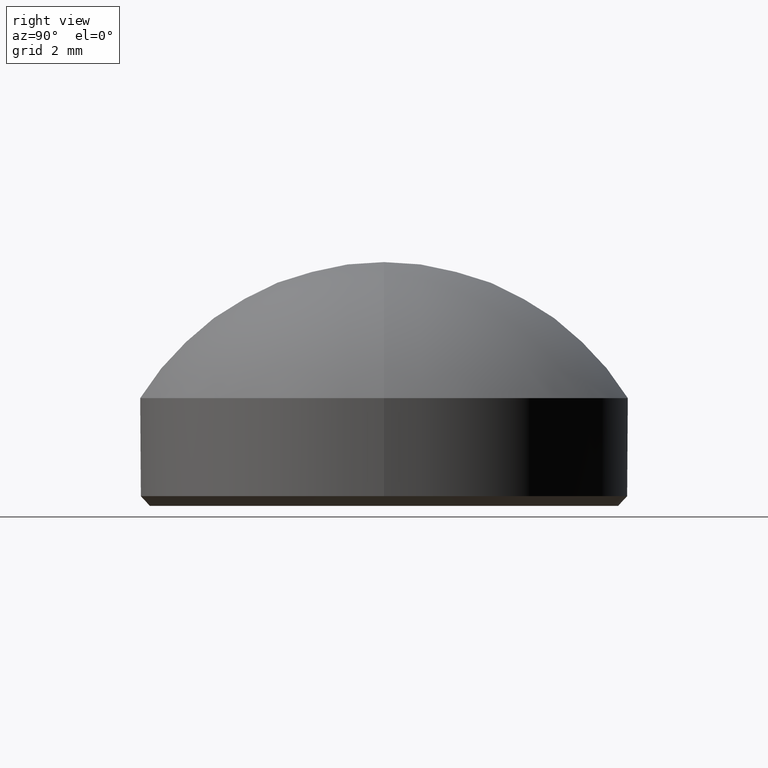
[diagram: clean part render]
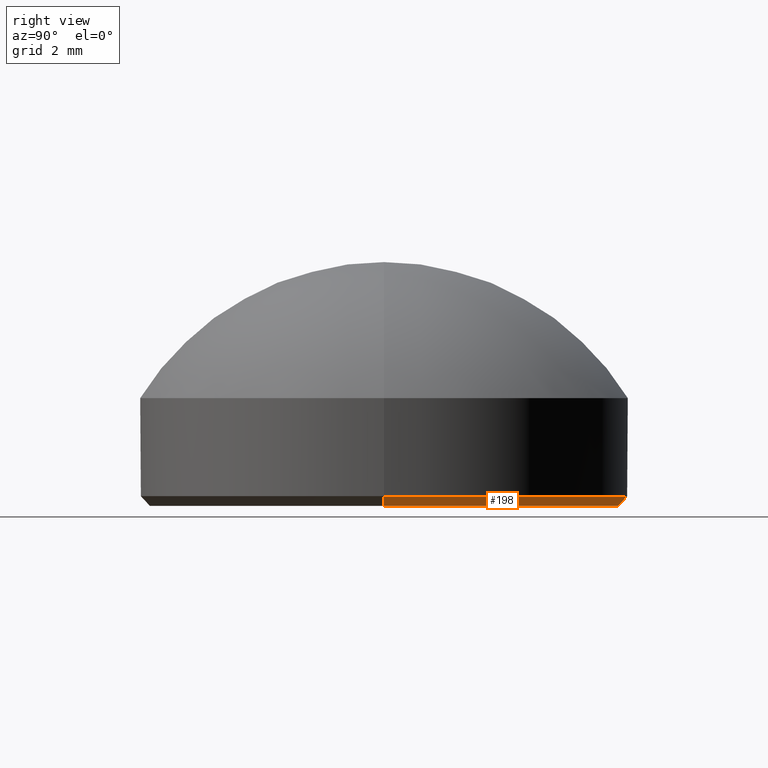
[diagram: same view with one face highlighted and labeled with its STEP entity id]
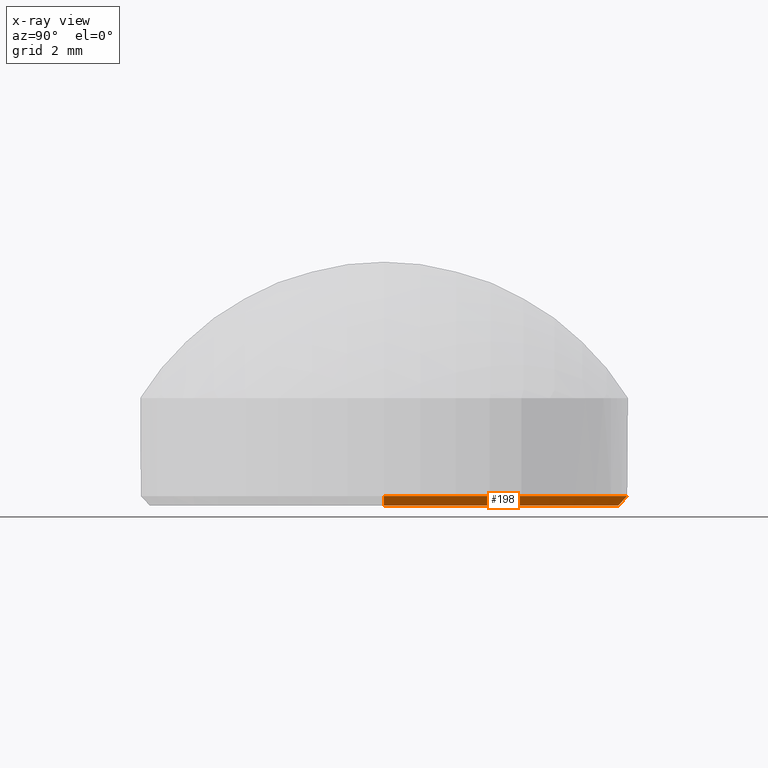
[diagram: x-ray of the same camera — body ghosted, the highlighted face saturated]
A machine part, right view. The second image highlights one B-rep face of the part: STEP entity #198.
The next image is the same camera in x-ray: the body ghosted, the highlighted face saturated — about 0% of this face is hidden behind the body in this view.
In plain terms, the highlighted conical surface has half-angle 45 deg.
Its self-contained STEP definition (entity closure, byte-faithful):
#5 = LINE ( 'NONE', #79, #148 ) ;
#29 = FACE_OUTER_BOUND ( 'NONE', #160, .T. ) ;
#32 = ORIENTED_EDGE ( 'NONE', *, *, #127, .F. ) ;
#35 = VERTEX_POINT ( 'NONE', #55 ) ;
#39 = CARTESIAN_POINT ( 'NONE',  ( 0.000000000000000000, 0.000000000000000000, 0.1999999999999987899 ) ) ;
#48 = VERTEX_POINT ( 'NONE', #184 ) ;
#50 = ORIENTED_EDGE ( 'NONE', *, *, #149, .T. ) ;
#55 = CARTESIAN_POINT ( 'NONE',  ( -4.800000000000000711, 6.000769315822031726E-16, 0.000000000000000000 ) ) ;
#63 = CIRCLE ( 'NONE', #123, 4.800000000000000711 ) ;
#70 = EDGE_CURVE ( 'NONE', #35, #48, #63, .T. ) ;
#79 = CARTESIAN_POINT ( 'NONE',  ( 5.000000000000000000, 0.000000000000000000, 0.1999999999999987899 ) ) ;
#83 = EDGE_CURVE ( 'NONE', #150, #87, #197, .T. ) ;
#87 = VERTEX_POINT ( 'NONE', #191 ) ;
#90 = CARTESIAN_POINT ( 'NONE',  ( 0.000000000000000000, 0.000000000000000000, 0.000000000000000000 ) ) ;
#99 = AXIS2_PLACEMENT_3D ( 'NONE', #108, #188, #136 ) ;
#108 = CARTESIAN_POINT ( 'NONE',  ( 0.000000000000000000, 0.000000000000000000, 0.1999999999999987899 ) ) ;
#109 = CARTESIAN_POINT ( 'NONE',  ( -5.000000000000000000, 6.123233995736766282E-16, 0.1999999999999987899 ) ) ;
#123 = AXIS2_PLACEMENT_3D ( 'NONE', #90, #138, #141 ) ;
#125 = DIRECTION ( 'NONE',  ( -0.000000000000000000, -0.000000000000000000, 1.000000000000000000 ) ) ;
#127 = EDGE_CURVE ( 'NONE', #48, #150, #5, .T. ) ;
#136 = DIRECTION ( 'NONE',  ( 1.000000000000000000, 0.000000000000000000, 0.000000000000000000 ) ) ;
#137 = LINE ( 'NONE', #109, #210 ) ;
#138 = DIRECTION ( 'NONE',  ( -0.000000000000000000, -0.000000000000000000, -1.000000000000000000 ) ) ;
#141 = DIRECTION ( 'NONE',  ( 1.000000000000000000, 0.000000000000000000, 0.000000000000000000 ) ) ;
#148 = VECTOR ( 'NONE', #187, 1000.000000000000114 ) ;
#149 = EDGE_CURVE ( 'NONE', #35, #87, #137, .T. ) ;
#150 = VERTEX_POINT ( 'NONE', #190 ) ;
#160 = EDGE_LOOP ( 'NONE', ( #180, #50, #199, #32 ) ) ;
#177 = AXIS2_PLACEMENT_3D ( 'NONE', #39, #125, #207 ) ;
#180 = ORIENTED_EDGE ( 'NONE', *, *, #70, .F. ) ;
#184 = CARTESIAN_POINT ( 'NONE',  ( 4.800000000000000711, 0.000000000000000000, 0.000000000000000000 ) ) ;
#187 = DIRECTION ( 'NONE',  ( 0.7071067811865490160, 0.000000000000000000, 0.7071067811865460184 ) ) ;
#188 = DIRECTION ( 'NONE',  ( -0.000000000000000000, -0.000000000000000000, 1.000000000000000000 ) ) ;
#190 = CARTESIAN_POINT ( 'NONE',  ( 5.000000000000000000, 6.123233995736766282E-16, 0.1999999999999987899 ) ) ;
#191 = CARTESIAN_POINT ( 'NONE',  ( -5.000000000000000000, 0.000000000000000000, 0.1999999999999987899 ) ) ;
#192 = DIRECTION ( 'NONE',  ( -0.7071067811865490160, 8.659560562354953812E-17, 0.7071067811865460184 ) ) ;
#197 = CIRCLE ( 'NONE', #99, 5.000000000000000000 ) ;
#198 = ADVANCED_FACE ( 'NONE', ( #29 ), #202, .T. ) ;
#199 = ORIENTED_EDGE ( 'NONE', *, *, #83, .F. ) ;
#202 = CONICAL_SURFACE ( 'NONE', #177, 5.000000000000000000, 0.7853981633974504994 ) ;
#207 = DIRECTION ( 'NONE',  ( 1.000000000000000000, 0.000000000000000000, 0.000000000000000000 ) ) ;
#210 = VECTOR ( 'NONE', #192, 1000.000000000000114 ) ;